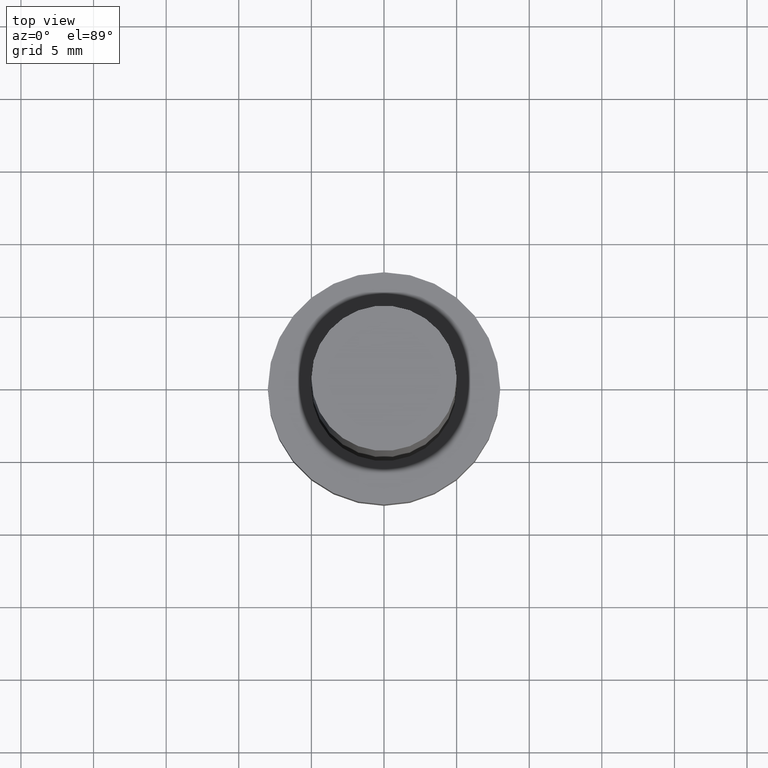
[diagram: clean part render]
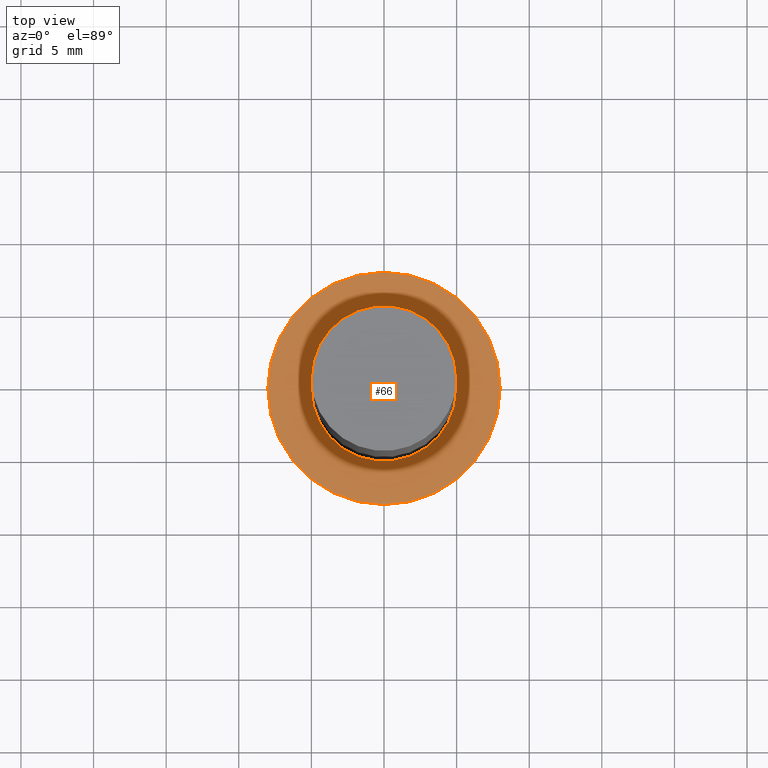
[diagram: same view with one face highlighted and labeled with its STEP entity id]
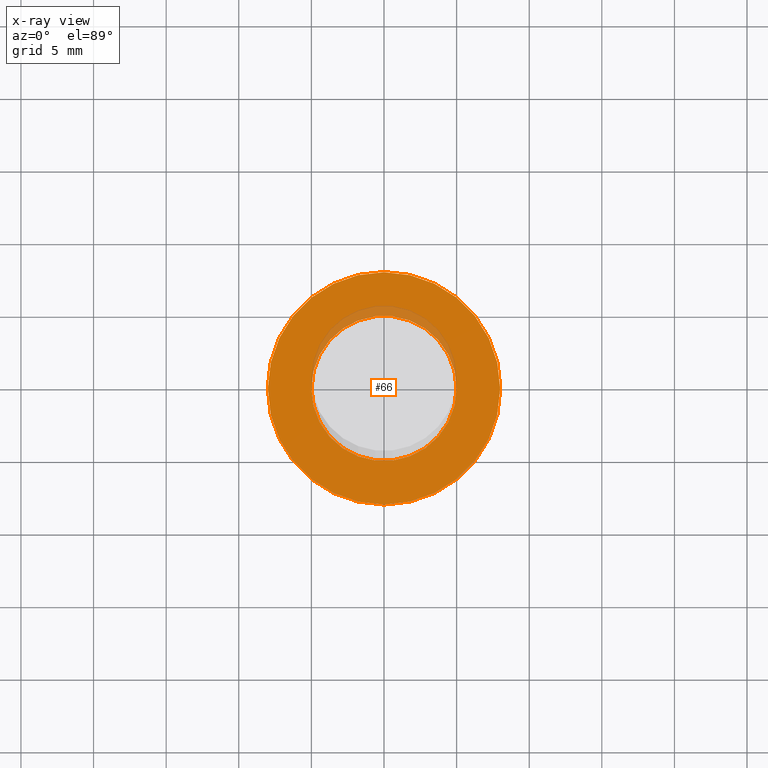
[diagram: x-ray of the same camera — body ghosted, the highlighted face saturated]
A machine part, top view. The second image highlights one B-rep face of the part: STEP entity #66.
The next image is the same camera in x-ray: the body ghosted, the highlighted face saturated — about 6% of this face is hidden behind the body in this view.
In plain terms, the highlighted planar face has unit normal (0, 0, 1).
Its self-contained STEP definition (entity closure, byte-faithful):
#2 = CIRCLE ( 'NONE', #147, 5.000000000000000888 ) ;
#14 = DIRECTION ( 'NONE',  ( 0.000000000000000000, 0.000000000000000000, 1.000000000000000000 ) ) ;
#15 = EDGE_CURVE ( 'NONE', #221, #69, #118, .T. ) ;
#30 = DIRECTION ( 'NONE',  ( 1.000000000000000000, 0.000000000000000000, 0.000000000000000000 ) ) ;
#34 = DIRECTION ( 'NONE',  ( 0.000000000000000000, 0.000000000000000000, 1.000000000000000000 ) ) ;
#50 = VERTEX_POINT ( 'NONE', #208 ) ;
#52 = AXIS2_PLACEMENT_3D ( 'NONE', #88, #56, #243 ) ;
#53 = EDGE_LOOP ( 'NONE', ( #200, #129 ) ) ;
#55 = FACE_BOUND ( 'NONE', #53, .T. ) ;
#56 = DIRECTION ( 'NONE',  ( 0.000000000000000000, 0.000000000000000000, 1.000000000000000000 ) ) ;
#66 = ADVANCED_FACE ( 'NONE', ( #55, #166 ), #75, .T. ) ;
#69 = VERTEX_POINT ( 'NONE', #209 ) ;
#72 = ORIENTED_EDGE ( 'NONE', *, *, #179, .T. ) ;
#73 = CARTESIAN_POINT ( 'NONE',  ( 0.000000000000000000, 0.000000000000000000, 5.000000000000000000 ) ) ;
#75 = PLANE ( 'NONE',  #182 ) ;
#76 = EDGE_CURVE ( 'NONE', #50, #206, #2, .T. ) ;
#86 = CARTESIAN_POINT ( 'NONE',  ( -8.000000000000000000, 0.000000000000000000, 5.000000000000000000 ) ) ;
#88 = CARTESIAN_POINT ( 'NONE',  ( 0.000000000000000000, 0.000000000000000000, 5.000000000000000000 ) ) ;
#92 = DIRECTION ( 'NONE',  ( 0.000000000000000000, 0.000000000000000000, 1.000000000000000000 ) ) ;
#95 = DIRECTION ( 'NONE',  ( 1.000000000000000000, 0.000000000000000000, 0.000000000000000000 ) ) ;
#111 = CARTESIAN_POINT ( 'NONE',  ( 0.000000000000000000, 0.000000000000000000, 5.000000000000000000 ) ) ;
#118 = CIRCLE ( 'NONE', #235, 8.000000000000000000 ) ;
#129 = ORIENTED_EDGE ( 'NONE', *, *, #76, .F. ) ;
#134 = CIRCLE ( 'NONE', #138, 8.000000000000000000 ) ;
#137 = EDGE_CURVE ( 'NONE', #206, #50, #230, .T. ) ;
#138 = AXIS2_PLACEMENT_3D ( 'NONE', #73, #220, #30 ) ;
#147 = AXIS2_PLACEMENT_3D ( 'NONE', #241, #92, #150 ) ;
#149 = CARTESIAN_POINT ( 'NONE',  ( 0.000000000000000000, 0.000000000000000000, 5.000000000000000000 ) ) ;
#150 = DIRECTION ( 'NONE',  ( 1.000000000000000000, 0.000000000000000000, 0.000000000000000000 ) ) ;
#163 = EDGE_LOOP ( 'NONE', ( #219, #72 ) ) ;
#166 = FACE_OUTER_BOUND ( 'NONE', #163, .T. ) ;
#179 = EDGE_CURVE ( 'NONE', #69, #221, #134, .T. ) ;
#182 = AXIS2_PLACEMENT_3D ( 'NONE', #111, #34, #249 ) ;
#200 = ORIENTED_EDGE ( 'NONE', *, *, #137, .F. ) ;
#206 = VERTEX_POINT ( 'NONE', #223 ) ;
#208 = CARTESIAN_POINT ( 'NONE',  ( 5.000000000000000888, 6.123233995736767268E-16, 5.000000000000000000 ) ) ;
#209 = CARTESIAN_POINT ( 'NONE',  ( 8.000000000000000000, 9.797174393178825657E-16, 5.000000000000000000 ) ) ;
#219 = ORIENTED_EDGE ( 'NONE', *, *, #15, .T. ) ;
#220 = DIRECTION ( 'NONE',  ( 0.000000000000000000, 0.000000000000000000, 1.000000000000000000 ) ) ;
#221 = VERTEX_POINT ( 'NONE', #86 ) ;
#223 = CARTESIAN_POINT ( 'NONE',  ( -5.000000000000000888, 0.000000000000000000, 5.000000000000000000 ) ) ;
#230 = CIRCLE ( 'NONE', #52, 5.000000000000000888 ) ;
#235 = AXIS2_PLACEMENT_3D ( 'NONE', #149, #14, #95 ) ;
#241 = CARTESIAN_POINT ( 'NONE',  ( 0.000000000000000000, 0.000000000000000000, 5.000000000000000000 ) ) ;
#243 = DIRECTION ( 'NONE',  ( 1.000000000000000000, 0.000000000000000000, 0.000000000000000000 ) ) ;
#249 = DIRECTION ( 'NONE',  ( 1.000000000000000000, 0.000000000000000000, -0.000000000000000000 ) ) ;